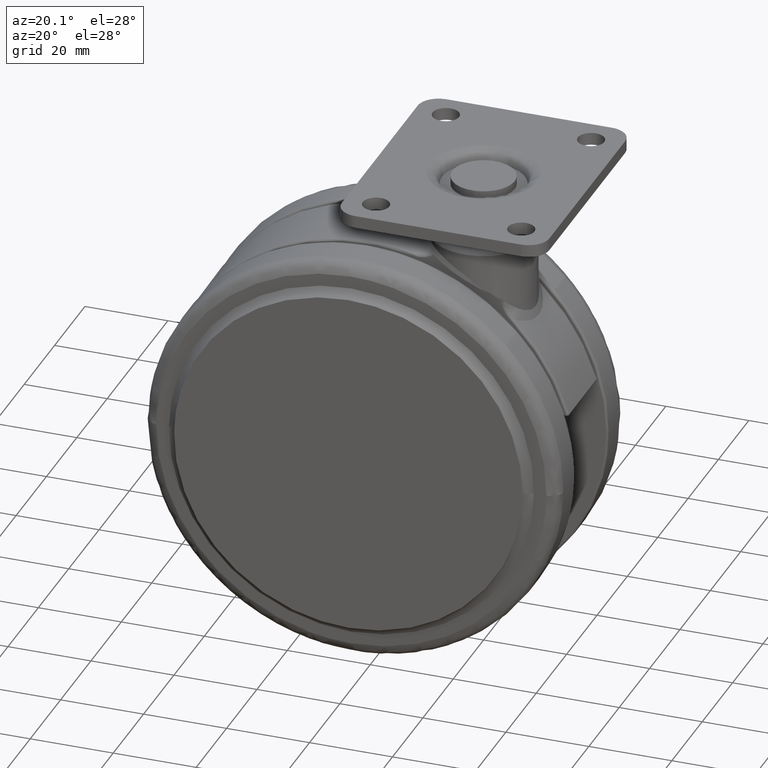
[diagram: clean part render]
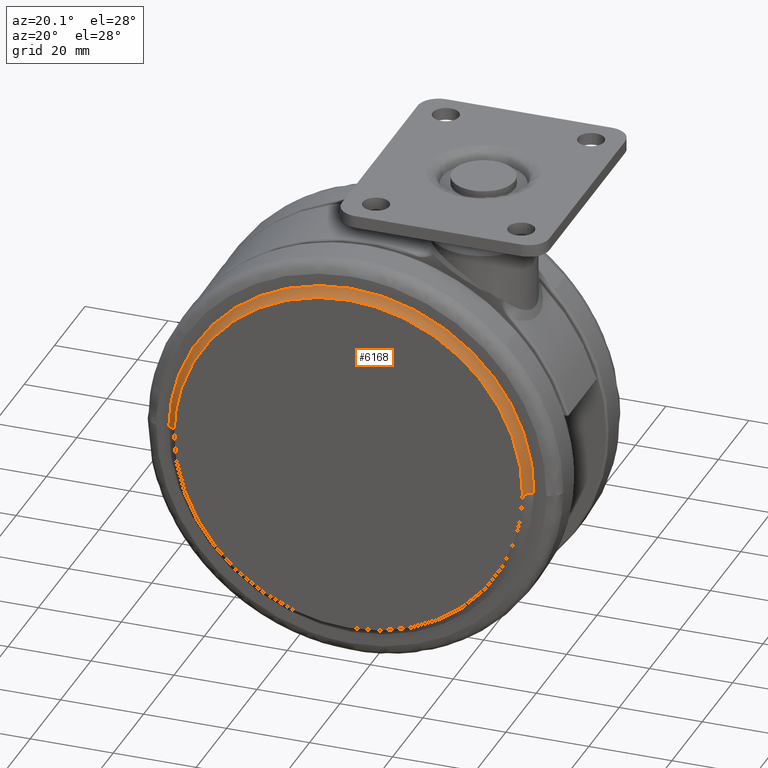
[diagram: same view with one face highlighted and labeled with its STEP entity id]
A machine part, auxiliary view. The second image highlights one B-rep face of the part: STEP entity #6168.
In plain terms, the highlighted face is a freeform B-spline surface patch.
Its self-contained STEP definition (entity closure, byte-faithful):
#5944=CARTESIAN_POINT('',(19.996525944315369,-21.500000000057121,-54.052905754855743));
#5945=VERTEX_POINT('',#5944);
#5959=CARTESIAN_POINT('',(-67.996525944315380,-21.500000000057121,-52.947094245144257));
#5960=VERTEX_POINT('',#5959);
#5976=CARTESIAN_POINT('',(-24.0,-21.500000000000000,-9.499999999998954));
#5977=VERTEX_POINT('',#5976);
#5978=CARTESIAN_POINT('',(-24.0,-21.500000000000000,-9.499999999998954));
#5979=CARTESIAN_POINT('',(-67.450524915599587,-21.500000000028564,-9.500000000003064));
#5980=CARTESIAN_POINT('',(-67.996525944315380,-21.500000000057121,-52.947094245144257));
#5988=(BOUNDED_CURVE()B_SPLINE_CURVE(2,(#5978,#5979,#5980),.UNSPECIFIED.,.F.,.U.)B_SPLINE_CURVE_WITH_KNOTS((3,3),(0.500000000000000,0.747784295921742),.UNSPECIFIED.)CURVE()GEOMETRIC_REPRESENTATION_ITEM()RATIONAL_B_SPLINE_CURVE((1.0,0.709702639984223,0.994854295644045))REPRESENTATION_ITEM(''));
#5989=EDGE_CURVE('',#5977,#5960,#5988,.T.);
#5991=CARTESIAN_POINT('',(19.996525944315369,-21.500000000057121,-54.052905754855743));
#5992=CARTESIAN_POINT('',(19.999999999349445,-21.500000000056946,-53.776463791633198));
#5993=CARTESIAN_POINT('',(19.999999999351498,-21.500000000056769,-53.499999999991843));
#5994=CARTESIAN_POINT('',(19.999999999678323,-21.500000000028212,-9.499999999994902));
#5995=CARTESIAN_POINT('',(-24.0,-21.500000000000000,-9.499999999998954));
#6003=(BOUNDED_CURVE()B_SPLINE_CURVE(2,(#5991,#5992,#5993,#5994,#5995),.UNSPECIFIED.,.F.,.U.)B_SPLINE_CURVE_WITH_KNOTS((3,2,3),(0.247784295921743,0.250000000000000,0.500000000000000),.UNSPECIFIED.)CURVE()GEOMETRIC_REPRESENTATION_ITEM()RATIONAL_B_SPLINE_CURVE((0.994854295644045,0.997404141202324,1.0,0.707106781186547,1.0))REPRESENTATION_ITEM(''));
#6004=EDGE_CURVE('',#5945,#5977,#6003,.T.);
#6040=CARTESIAN_POINT('',(17.996683856651469,-23.499999998956870,-54.027773675106353));
#6041=VERTEX_POINT('',#6040);
#6042=CARTESIAN_POINT('',(17.996683856651476,-23.499999998956877,-54.027773675106353));
#6043=CARTESIAN_POINT('',(18.157489801539910,-21.660818642181816,-54.029794528577405));
#6044=CARTESIAN_POINT('',(19.996525944315376,-21.500000000057121,-54.052905754855750));
#6052=(BOUNDED_CURVE()B_SPLINE_CURVE(2,(#6042,#6043,#6044),.UNSPECIFIED.,.F.,.U.)B_SPLINE_CURVE_WITH_KNOTS((3,3),(-1.700186989989240,-0.299813009816729),.UNSPECIFIED.)CURVE()GEOMETRIC_REPRESENTATION_ITEM()RATIONAL_B_SPLINE_CURVE((0.891550928961433,0.682940150956922,0.891550929019241))REPRESENTATION_ITEM(''));
#6053=EDGE_CURVE('',#6041,#5945,#6052,.T.);
#6070=CARTESIAN_POINT('',(-65.996683856651472,-23.499999998956870,-52.972226324893647));
#6071=VERTEX_POINT('',#6070);
#6087=CARTESIAN_POINT('',(-65.996683856651472,-23.499999998956874,-52.972226324893647));
#6088=CARTESIAN_POINT('',(-66.157489801539910,-21.660818642181802,-52.970205471422574));
#6089=CARTESIAN_POINT('',(-67.996525944315380,-21.500000000057113,-52.947094245144264));
#6097=(BOUNDED_CURVE()B_SPLINE_CURVE(2,(#6087,#6088,#6089),.UNSPECIFIED.,.F.,.U.)B_SPLINE_CURVE_WITH_KNOTS((3,3),(-1.700186989989238,-0.299813009816726),.UNSPECIFIED.)CURVE()GEOMETRIC_REPRESENTATION_ITEM()RATIONAL_B_SPLINE_CURVE((0.891550928961432,0.682940150956922,0.891550929019242))REPRESENTATION_ITEM(''));
#6098=EDGE_CURVE('',#6071,#5960,#6097,.T.);
#6103=CARTESIAN_POINT('',(17.974191034213835,-23.639362615198603,-55.201550266790967));
#6104=CARTESIAN_POINT('',(17.981524133227524,-23.639362615198607,-54.618031505822245));
#6105=CARTESIAN_POINT('',(18.516619542168137,-23.639362615198600,-12.038733252487793));
#6106=CARTESIAN_POINT('',(-23.472323602672034,-23.639362615198596,-11.511056855159831));
#6107=CARTESIAN_POINT('',(-65.461266747512198,-23.639362615198600,-10.983380457831856));
#6108=CARTESIAN_POINT('',(-65.996362156452818,-23.639362615198600,-53.562678711165844));
#6109=CARTESIAN_POINT('',(-66.003695255466511,-23.639362615198600,-54.146197472134098));
#6110=CARTESIAN_POINT('',(18.024017248688988,-21.542106281647378,-55.203570122479519));
#6111=CARTESIAN_POINT('',(18.031359052589067,-21.542106281647374,-54.619358685125199));
#6112=CARTESIAN_POINT('',(18.567089656108859,-21.542106281647381,-11.989515913964484));
#6113=CARTESIAN_POINT('',(-23.471697214963324,-21.542106281647378,-11.461213128927810));
#6114=CARTESIAN_POINT('',(-65.510484086035518,-21.542106281647381,-10.932910343891134));
#6115=CARTESIAN_POINT('',(-66.046214689555313,-21.542106281647367,-53.562753115051393));
#6116=CARTESIAN_POINT('',(-66.053556493455375,-21.542106281647374,-54.146964552405251));
#6117=CARTESIAN_POINT('',(20.120371215382498,-21.492258675661478,-55.288552145084999));
#6118=CARTESIAN_POINT('',(20.128079262700901,-21.492258675661489,-54.675197516663580));
#6119=CARTESIAN_POINT('',(20.690534607197311,-21.492258675661493,-9.918779376375534));
#6120=CARTESIAN_POINT('',(-23.445343008213573,-21.492258675661486,-9.364122384589113));
#6121=CARTESIAN_POINT('',(-67.581220623624461,-21.492258675661493,-8.809465392802691));
#6122=CARTESIAN_POINT('',(-68.143675968120874,-21.492258675661489,-53.565883533090236));
#6123=CARTESIAN_POINT('',(-68.151384015439262,-21.492258675661489,-54.179238161511165));
#6131=(BOUNDED_SURFACE()B_SPLINE_SURFACE(2,2,((#6103,#6110,#6117),(#6104,#6111,#6118),(#6105,#6112,#6119),(#6106,#6113,#6120),(#6107,#6114,#6121),(#6108,#6115,#6122),(#6109,#6116,#6123)),.UNSPECIFIED.,.F.,.F.,.U.)B_SPLINE_SURFACE_WITH_KNOTS((3,1,2,1,3),(3,3),(0.0,1.462649812329343,74.595140428522015,147.727631044714710,149.190280857042890),(0.0,3.523862719528233),.UNSPECIFIED.)GEOMETRIC_REPRESENTATION_ITEM()RATIONAL_B_SPLINE_SURFACE(((0.924133629813956,0.668803755609012,0.924133639694583),(0.918782868414116,0.664931361829445,0.918782878237534),(0.645894037023312,0.467439279072250,0.645894043929064),(0.913432107014277,0.661058968049878,0.913432116780486),(0.645894037023312,0.467439279072250,0.645894043929064),(0.918782868414112,0.664931361829442,0.918782878237530),(0.924133629813947,0.668803755609006,0.924133639694574)))REPRESENTATION_ITEM('')SURFACE());
#6132=ORIENTED_EDGE('',*,*,#5989,.T.);
#6133=ORIENTED_EDGE('',*,*,#6098,.F.);
#6134=CARTESIAN_POINT('',(-24.0,-23.500000000000000,-11.500000000000000));
#6135=VERTEX_POINT('',#6134);
#6136=CARTESIAN_POINT('',(-24.0,-23.500000000000000,-11.500000000000000));
#6137=CARTESIAN_POINT('',(-65.475501056148502,-23.499999999478433,-11.499999999999421));
#6138=CARTESIAN_POINT('',(-65.996683856651472,-23.499999998956870,-52.972226324893647));
#6146=(BOUNDED_CURVE()B_SPLINE_CURVE(2,(#6136,#6137,#6138),.UNSPECIFIED.,.F.,.U.)B_SPLINE_CURVE_WITH_KNOTS((3,3),(0.500000000000000,0.747784295921710),.UNSPECIFIED.)CURVE()GEOMETRIC_REPRESENTATION_ITEM()RATIONAL_B_SPLINE_CURVE((1.0,0.709702639984262,0.994854295643970))REPRESENTATION_ITEM(''));
#6147=EDGE_CURVE('',#6135,#6071,#6146,.T.);
#6148=ORIENTED_EDGE('',*,*,#6147,.F.);
#6149=CARTESIAN_POINT('',(17.996683856651480,-23.499999998956877,-54.027773675106346));
#6150=CARTESIAN_POINT('',(18.000000000090967,-23.499999998960110,-53.763897255662712));
#6151=CARTESIAN_POINT('',(18.000000000090679,-23.499999998963389,-53.500000000001137));
#6152=CARTESIAN_POINT('',(18.000000000045052,-23.499999999484949,-11.500000000000561));
#6153=CARTESIAN_POINT('',(-24.0,-23.500000000000000,-11.500000000000000));
#6161=(BOUNDED_CURVE()B_SPLINE_CURVE(2,(#6149,#6150,#6151,#6152,#6153),.UNSPECIFIED.,.F.,.U.)B_SPLINE_CURVE_WITH_KNOTS((3,2,3),(0.247784295921710,0.250000000000000,0.500000000000000),.UNSPECIFIED.)CURVE()GEOMETRIC_REPRESENTATION_ITEM()RATIONAL_B_SPLINE_CURVE((0.994854295643970,0.997404141202286,1.0,0.707106781186547,1.0))REPRESENTATION_ITEM(''));
#6162=EDGE_CURVE('',#6041,#6135,#6161,.T.);
#6163=ORIENTED_EDGE('',*,*,#6162,.F.);
#6164=ORIENTED_EDGE('',*,*,#6053,.T.);
#6165=ORIENTED_EDGE('',*,*,#6004,.T.);
#6166=EDGE_LOOP('',(#6132,#6133,#6148,#6163,#6164,#6165));
#6167=FACE_OUTER_BOUND('',#6166,.T.);
#6168=ADVANCED_FACE('',(#6167),#6131,.F.);